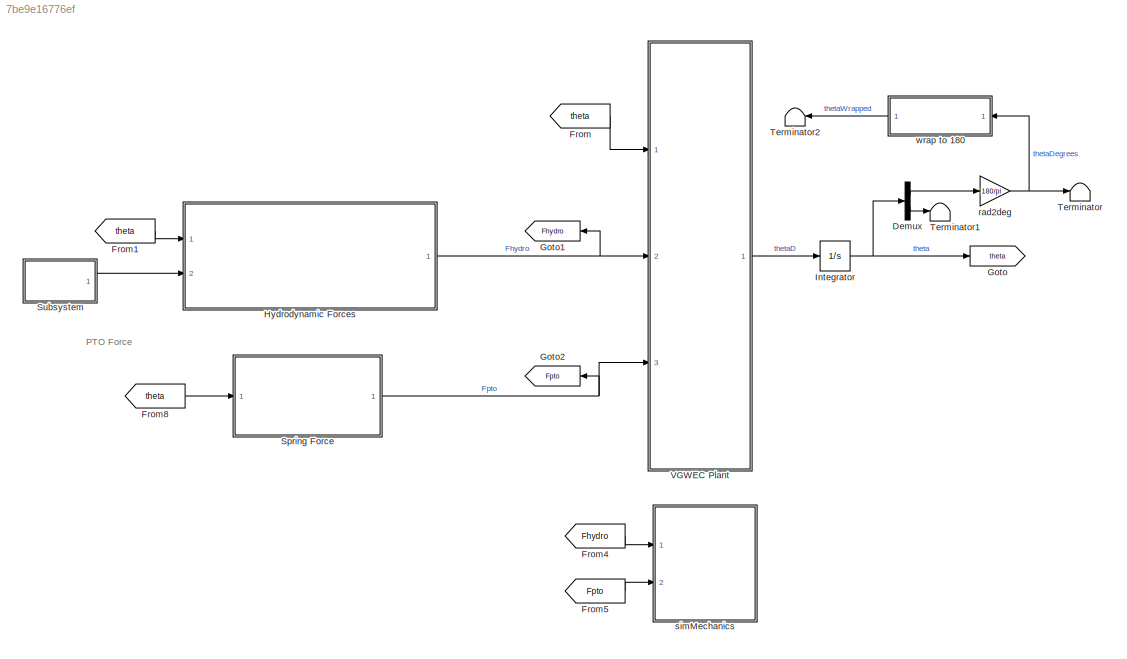
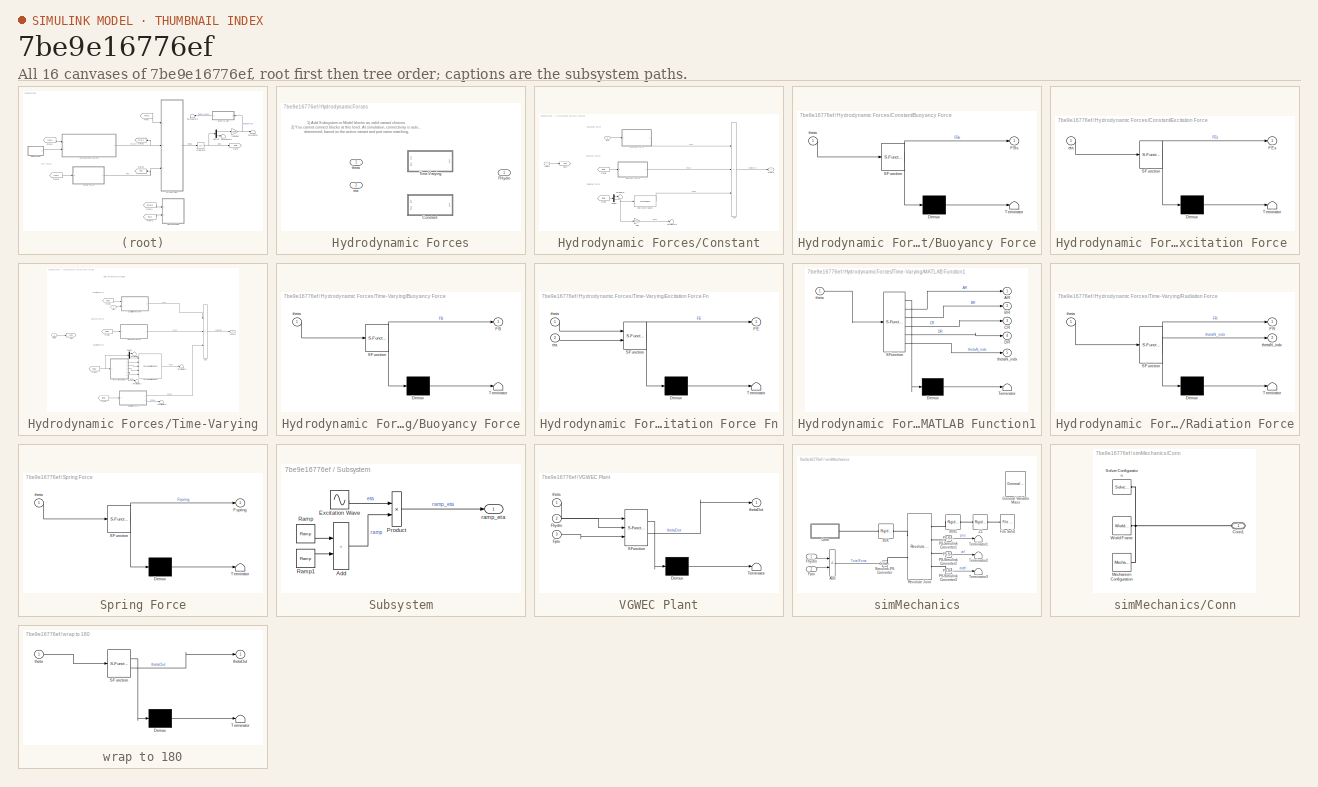
[diagram: thumbnail index - all 16 canvases of the model, root first then tree order]
MODEL slx_7be9e16776ef
KIND model
CONFIG AbsTol = auto
CONFIG EnableMultiTasking = off
CONFIG FixedStep = dt
CONFIG MaxStep = auto
CONFIG MinStep = auto
CONFIG RelTol = 1e-3
CONFIG SampleTimeConstraint = Unconstrained
CONFIG SolverName = ode3
CONFIG StartTime = 0.0
CONFIG StopTime = tSim
BLOCK [Demux] Demux
  Outputs = 2
  Ports = [1, 2]
BLOCK [From] From
  GotoTag = theta
BLOCK [From] From1
  GotoTag = theta
BLOCK [From] From4
  GotoTag = Fhydro
BLOCK [From] From5
  GotoTag = Fpto
BLOCK [From] From8
  GotoTag = theta
BLOCK [Goto] Goto
  GotoTag = theta
BLOCK [Goto] Goto1
  GotoTag = Fhydro
  NameLocation = top
BLOCK [Goto] Goto2
  GotoTag = Fpto
  NameLocation = top
BLOCK [SubSystem] Hydrodynamic Forces
  Ports = [2, 1]
  RequestExecContextInheritance = off
  Variant = on
BLOCK [SubSystem] Hydrodynamic Forces/Constant
  Ports = [2, 1]
  RequestExecContextInheritance = off
  VariantControl = Time_Variant == 0
BLOCK [Sum] Hydrodynamic Forces/Constant/Add
  IconShape = rectangular
  Inputs = +--
  Ports = [3, 1]
BLOCK [SubSystem] Hydrodynamic Forces/Constant/Buoyancy Force
  ErrorFcn = Stateflow.Translate.translate
  PermitHierarchicalResolution = ExplicitOnly
  Ports = [1, 1]
  RequestExecContextInheritance = off
  SFBlockType = MATLAB Function
  TreatAsAtomicUnit = on
BLOCK [Demux] Hydrodynamic Forces/Constant/Buoyancy Force/ Demux 
  Outputs = 1
  Ports = [1, 1]
BLOCK [S-Function] Hydrodynamic Forces/Constant/Buoyancy Force/ SFunction 
  EnableBusSupport = on
  FunctionName = sf_sfun
  Parameters = hydroCoeff,hydroVCoeff
  PortCounts = [1 2]
  Ports = [1, 2]
  SFcnIsStateOwnerBlock = off
  SFunctionDeploymentMode = off
  Tag = Stateflow S-Function 11
BLOCK [Terminator] Hydrodynamic Forces/Constant/Buoyancy Force/ Terminator 
BLOCK [Outport] Hydrodynamic Forces/Constant/Buoyancy Force/FBs
BLOCK [Inport] Hydrodynamic Forces/Constant/Buoyancy Force/theta
BLOCK [Demux] Hydrodynamic Forces/Constant/Demux
  Outputs = 2
  Ports = [1, 2]
BLOCK [SubSystem] Hydrodynamic Forces/Constant/Excitation Force 
  ErrorFcn = Stateflow.Translate.translate
  PermitHierarchicalResolution = ExplicitOnly
  Ports = [1, 1]
  RequestExecContextInheritance = off
  SFBlockType = MATLAB Function
  TreatAsAtomicUnit = on
BLOCK [Demux] Hydrodynamic Forces/Constant/Excitation Force / Demux 
  Outputs = 1
  Ports = [1, 1]
BLOCK [S-Function] Hydrodynamic Forces/Constant/Excitation Force / SFunction 
  EnableBusSupport = on
  FunctionName = sf_sfun
  Parameters = hydroCoeff,hydroVCoeff,w_Wave
  PortCounts = [1 2]
  Ports = [1, 2]
  SFcnIsStateOwnerBlock = off
  SFunctionDeploymentMode = off
  Tag = Stateflow S-Function 17
BLOCK [Terminator] Hydrodynamic Forces/Constant/Excitation Force / Terminator 
BLOCK [Outport] Hydrodynamic Forces/Constant/Excitation Force /FEs
BLOCK [Inport] Hydrodynamic Forces/Constant/Excitation Force /eta
BLOCK [Outport] Hydrodynamic Forces/Constant/FHydro
BLOCK [From] Hydrodynamic Forces/Constant/From1
  GotoTag = theta
BLOCK [From] Hydrodynamic Forces/Constant/From6
  GotoTag = theta
BLOCK [Gain] Hydrodynamic Forces/Constant/Gain
  Gain = test_B
BLOCK [Goto] Hydrodynamic Forces/Constant/Goto
  GotoTag = theta
BLOCK [StateSpace] Hydrodynamic Forces/Constant/Rad State-Space
  A = AR3
  B = BR3
  C = CR3
  D = DR3
  InitialCondition = 0
  Ports = [1, 1]
BLOCK [Terminator] Hydrodynamic Forces/Constant/Terminator
BLOCK [Terminator] Hydrodynamic Forces/Constant/Terminator1
BLOCK [Inport] Hydrodynamic Forces/Constant/eta
  Port = 2
BLOCK [Inport] Hydrodynamic Forces/Constant/theta
BLOCK [Outport] Hydrodynamic Forces/FHydro
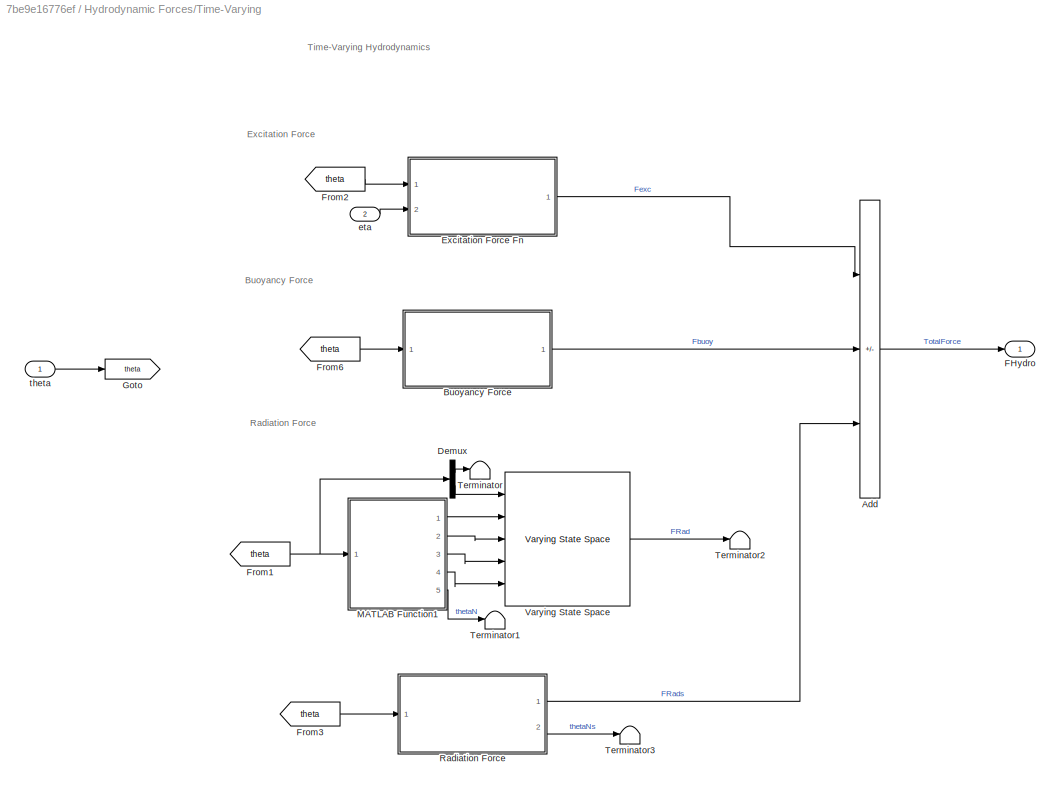
BLOCK [SubSystem] Hydrodynamic Forces/Time-Varying
  Ports = [2, 1]
  RequestExecContextInheritance = off
  VariantControl = Time_Variant == 1
BLOCK [Sum] Hydrodynamic Forces/Time-Varying/Add
  IconShape = rectangular
  Inputs = +--
  Ports = [3, 1]
BLOCK [SubSystem] Hydrodynamic Forces/Time-Varying/Buoyancy Force
  ErrorFcn = Stateflow.Translate.translate
  PermitHierarchicalResolution = ExplicitOnly
  Ports = [1, 1]
  RequestExecContextInheritance = off
  SFBlockType = MATLAB Function
  TreatAsAtomicUnit = on
BLOCK [Demux] Hydrodynamic Forces/Time-Varying/Buoyancy Force/ Demux 
  Outputs = 1
  Ports = [1, 1]
BLOCK [S-Function] Hydrodynamic Forces/Time-Varying/Buoyancy Force/ SFunction 
  EnableBusSupport = on
  FunctionName = sf_sfun
  Parameters = hydroCoeff,hydroVCoeff
  PortCounts = [1 2]
  Ports = [1, 2]
  SFcnIsStateOwnerBlock = off
  SFunctionDeploymentMode = off
  Tag = Stateflow S-Function 8
BLOCK [Terminator] Hydrodynamic Forces/Time-Varying/Buoyancy Force/ Terminator 
BLOCK [Outport] Hydrodynamic Forces/Time-Varying/Buoyancy Force/FB
BLOCK [Inport] Hydrodynamic Forces/Time-Varying/Buoyancy Force/theta
BLOCK [Demux] Hydrodynamic Forces/Time-Varying/Demux
  Outputs = 2
  Ports = [1, 2]
BLOCK [SubSystem] Hydrodynamic Forces/Time-Varying/Excitation Force Fn
  ErrorFcn = Stateflow.Translate.translate
  PermitHierarchicalResolution = ExplicitOnly
  Ports = [2, 1]
  RequestExecContextInheritance = off
  SFBlockType = MATLAB Function
  TreatAsAtomicUnit = on
BLOCK [Demux] Hydrodynamic Forces/Time-Varying/Excitation Force Fn/ Demux 
  Outputs = 1
  Ports = [1, 1]
BLOCK [S-Function] Hydrodynamic Forces/Time-Varying/Excitation Force Fn/ SFunction 
  EnableBusSupport = on
  FunctionName = sf_sfun
  Parameters = hydroCoeff,hydroVCoeff,w_Wave
  PortCounts = [2 2]
  Ports = [2, 2]
  SFcnIsStateOwnerBlock = off
  SFunctionDeploymentMode = off
  Tag = Stateflow S-Function 9
BLOCK [Terminator] Hydrodynamic Forces/Time-Varying/Excitation Force Fn/ Terminator 
BLOCK [Outport] Hydrodynamic Forces/Time-Varying/Excitation Force Fn/FE
BLOCK [Inport] Hydrodynamic Forces/Time-Varying/Excitation Force Fn/eta
  Port = 2
BLOCK [Inport] Hydrodynamic Forces/Time-Varying/Excitation Force Fn/theta
BLOCK [Outport] Hydrodynamic Forces/Time-Varying/FHydro
BLOCK [From] Hydrodynamic Forces/Time-Varying/From1
  GotoTag = theta
BLOCK [From] Hydrodynamic Forces/Time-Varying/From2
  GotoTag = theta
BLOCK [From] Hydrodynamic Forces/Time-Varying/From3
  GotoTag = theta
BLOCK [From] Hydrodynamic Forces/Time-Varying/From6
  GotoTag = theta
BLOCK [Goto] Hydrodynamic Forces/Time-Varying/Goto
  GotoTag = theta
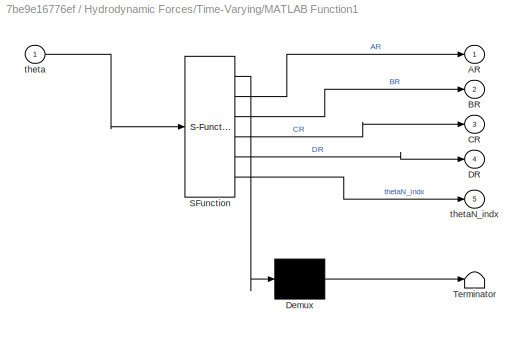
BLOCK [SubSystem] Hydrodynamic Forces/Time-Varying/MATLAB Function1
  ErrorFcn = Stateflow.Translate.translate
  PermitHierarchicalResolution = ExplicitOnly
  Ports = [1, 5]
  RequestExecContextInheritance = off
  SFBlockType = MATLAB Function
  TreatAsAtomicUnit = on
BLOCK [Demux] Hydrodynamic Forces/Time-Varying/MATLAB Function1/ Demux 
  Outputs = 1
  Ports = [1, 1]
BLOCK [S-Function] Hydrodynamic Forces/Time-Varying/MATLAB Function1/ SFunction 
  EnableBusSupport = on
  FunctionName = sf_sfun
  Parameters = hydroCoeff,tfRadAR_ROm,tfRadBR_ROm,tfRadCR_ROm,tfRadDR_ROm
  PortCounts = [1 6]
  Ports = [1, 6]
  SFcnIsStateOwnerBlock = off
  SFunctionDeploymentMode = off
  Tag = Stateflow S-Function 12
BLOCK [Terminator] Hydrodynamic Forces/Time-Varying/MATLAB Function1/ Terminator 
BLOCK [Outport] Hydrodynamic Forces/Time-Varying/MATLAB Function1/AR
BLOCK [Outport] Hydrodynamic Forces/Time-Varying/MATLAB Function1/BR
  Port = 2
BLOCK [Outport] Hydrodynamic Forces/Time-Varying/MATLAB Function1/CR
  Port = 3
BLOCK [Outport] Hydrodynamic Forces/Time-Varying/MATLAB Function1/DR
  Port = 4
BLOCK [Inport] Hydrodynamic Forces/Time-Varying/MATLAB Function1/theta
BLOCK [Outport] Hydrodynamic Forces/Time-Varying/MATLAB Function1/thetaN_indx
  Port = 5
BLOCK [SubSystem] Hydrodynamic Forces/Time-Varying/Radiation Force
  ErrorFcn = Stateflow.Translate.translate
  PermitHierarchicalResolution = ExplicitOnly
  Ports = [1, 2]
  RequestExecContextInheritance = off
  SFBlockType = MATLAB Function
  TreatAsAtomicUnit = on
BLOCK [Demux] Hydrodynamic Forces/Time-Varying/Radiation Force/ Demux 
  Outputs = 1
  Ports = [1, 1]
BLOCK [S-Function] Hydrodynamic Forces/Time-Varying/Radiation Force/ SFunction 
  EnableBusSupport = on
  FunctionName = sf_sfun
  Parameters = hydroCoeff,hydroVCoeff,w_WaveIndx
  PortCounts = [1 3]
  Ports = [1, 3]
  SFcnIsStateOwnerBlock = off
  SFunctionDeploymentMode = off
  Tag = Stateflow S-Function 3
BLOCK [Terminator] Hydrodynamic Forces/Time-Varying/Radiation Force/ Terminator 
BLOCK [Outport] Hydrodynamic Forces/Time-Varying/Radiation Force/FR
BLOCK [Inport] Hydrodynamic Forces/Time-Varying/Radiation Force/theta
BLOCK [Outport] Hydrodynamic Forces/Time-Varying/Radiation Force/thetaN_indx
  Port = 2
BLOCK [Terminator] Hydrodynamic Forces/Time-Varying/Terminator
BLOCK [Terminator] Hydrodynamic Forces/Time-Varying/Terminator1
BLOCK [Terminator] Hydrodynamic Forces/Time-Varying/Terminator2
BLOCK [Terminator] Hydrodynamic Forces/Time-Varying/Terminator3
BLOCK [Reference] Hydrodynamic Forces/Time-Varying/Varying State Space  REF=cstblocks/Linear Parameter Varying/Varying State Space
  Ports = [5, 1]
  SourceBlock = cstblocks/Linear Parameter Varying/Varying State Space
  SourceProductBaseCode = CT
  SourceType = Varying State Space
BLOCK [Inport] Hydrodynamic Forces/Time-Varying/eta
  Port = 2
BLOCK [Inport] Hydrodynamic Forces/Time-Varying/theta
BLOCK [Inport] Hydrodynamic Forces/eta
  Port = 2
BLOCK [Inport] Hydrodynamic Forces/theta
BLOCK [Integrator] Integrator
  InitialCondition = theta0
  Ports = [1, 1]
BLOCK [SubSystem] Spring Force
  ErrorFcn = Stateflow.Translate.translate
  PermitHierarchicalResolution = ExplicitOnly
  Ports = [1, 1]
  RequestExecContextInheritance = off
  SFBlockType = MATLAB Function
  TreatAsAtomicUnit = on
BLOCK [Demux] Spring Force/ Demux 
  Outputs = 1
  Ports = [1, 1]
BLOCK [S-Function] Spring Force/ SFunction 
  EnableBusSupport = on
  FunctionName = sf_sfun
  Parameters = hydroCoeff
  PortCounts = [1 2]
  Ports = [1, 2]
  SFcnIsStateOwnerBlock = off
  SFunctionDeploymentMode = off
  Tag = Stateflow S-Function 15
BLOCK [Terminator] Spring Force/ Terminator 
BLOCK [Outport] Spring Force/Fspring
BLOCK [Inport] Spring Force/theta
BLOCK [SubSystem] Subsystem
  Ports = [0, 1]
  RequestExecContextInheritance = off
BLOCK [Sum] Subsystem/Add
  IconShape = rectangular
  Ports = [2, 1]
BLOCK [Sin] Subsystem/Excitation Wave
  Amplitude = amp_Wave
  Frequency = w_Wave
  Ports = [0, 1]
  SampleTime = 0
BLOCK [Product] Subsystem/Product
  Ports = [2, 1]
BLOCK [Reference] Subsystem/Ramp  REF=simulink/Sources/Ramp
  Ports = [0, 1]
  SourceBlock = simulink/Sources/Ramp
  SourceProductBaseCode = SL
  SourceType = Ramp
BLOCK [Reference] Subsystem/Ramp1  REF=simulink/Sources/Ramp
  Ports = [0, 1]
  SourceBlock = simulink/Sources/Ramp
  SourceProductBaseCode = SL
  SourceType = Ramp
BLOCK [Outport] Subsystem/ramp_eta
BLOCK [Terminator] Terminator
BLOCK [Terminator] Terminator1
BLOCK [Terminator] Terminator2
  Commented = on
  NameLocation = top
BLOCK [SubSystem] VGWEC Plant
  ErrorFcn = Stateflow.Translate.translate
  PermitHierarchicalResolution = ExplicitOnly
  Ports = [3, 1]
  RequestExecContextInheritance = off
  SFBlockType = MATLAB Function
  TreatAsAtomicUnit = on
BLOCK [Demux] VGWEC Plant/ Demux 
  Outputs = 1
  Ports = [1, 1]
BLOCK [S-Function] VGWEC Plant/ SFunction 
  EnableBusSupport = on
  FunctionName = sf_sfun
  Parameters = Time_Variant,hydroCoeff,hydroVCoeff
  PortCounts = [3 2]
  Ports = [3, 2]
  SFcnIsStateOwnerBlock = off
  SFunctionDeploymentMode = off
  Tag = Stateflow S-Function 2
BLOCK [Terminator] VGWEC Plant/ Terminator 
BLOCK [Inport] VGWEC Plant/Fhydro
  Port = 2
BLOCK [Inport] VGWEC Plant/Fpto
  Port = 3
BLOCK [Inport] VGWEC Plant/theta
BLOCK [Outport] VGWEC Plant/thetaDot
BLOCK [Gain] rad2deg
  Gain = 180/pi
BLOCK [SubSystem] simMechanics
  Ports = [2]
  RequestExecContextInheritance = off
BLOCK [Reference] simMechanics/-Z1  REF=sm_lib/Frames and
Transforms/Rigid
Transform
  Ports = [0, 0, 0, 0, 0, 1, 1]
  SourceBlock = sm_lib/Frames and\nTransforms/Rigid\nTransform
  SourceProductBaseCode = MS
  SourceType = Rigid\nTransform
BLOCK [Reference] simMechanics/90X  REF=sm_lib/Frames and
Transforms/Rigid
Transform
  Ports = [0, 0, 0, 0, 0, 1, 1]
  SourceBlock = sm_lib/Frames and\nTransforms/Rigid\nTransform
  SourceProductBaseCode = MS
  SourceType = Rigid\nTransform
BLOCK [Reference] simMechanics/90X1  REF=sm_lib/Frames and
Transforms/Rigid
Transform
  Ports = [0, 0, 0, 0, 0, 1, 1]
  SourceBlock = sm_lib/Frames and\nTransforms/Rigid\nTransform
  SourceProductBaseCode = MS
  SourceType = Rigid\nTransform
BLOCK [Sum] simMechanics/Add
  IconShape = rectangular
  Inputs = +-
  Ports = [2, 1]
BLOCK [SubSystem] simMechanics/Conn
  Ports = [0, 0, 0, 0, 0, 0, 1]
  RequestExecContextInheritance = off
BLOCK [PMIOPort] simMechanics/Conn/Conn1
  Side = Right
BLOCK [Reference] simMechanics/Conn/Mechanism Configuration  REF=sm_lib/Utilities/Mechanism
Configuration
  Ports = [0, 0, 0, 0, 0, 0, 1]
  SourceBlock = sm_lib/Utilities/Mechanism\nConfiguration
  SourceProductBaseCode = MS
  SourceType = Mechanism\nConfiguration
BLOCK [Reference] simMechanics/Conn/Solver Configuration  REF=nesl_utility/Solver
Configuration
  Ports = [0, 0, 0, 0, 0, 0, 1]
  SourceBlock = nesl_utility/Solver\nConfiguration
  SourceProductBaseCode = SS,PW,VE
  SourceType = Solver\nConfiguration
BLOCK [Reference] simMechanics/Conn/World Frame  REF=sm_lib/Frames and
Transforms/World Frame
  Ports = [0, 0, 0, 0, 0, 0, 1]
  SourceBlock = sm_lib/Frames and\nTransforms/World Frame
  SourceProductBaseCode = MS
  SourceType = World Frame
BLOCK [Inport] simMechanics/Fhydro
BLOCK [Reference] simMechanics/File Solid  REF=sm_lib/Body Elements/File Solid
  NameLocation = top
  Ports = [0, 0, 0, 0, 0, 0, 1]
  SourceBlock = sm_lib/Body Elements/File Solid
  SourceProductBaseCode = MS
  SourceType = File Solid
BLOCK [Inport] simMechanics/Fpto
  Port = 2
BLOCK [Reference] simMechanics/General Variable Mass  REF=sm_lib/Body Elements/Variable Mass/General
Variable Mass
  Commented = on
  Ports = [0, 0, 0, 0, 0, 1, 1]
  SourceBlock = sm_lib/Body Elements/Variable Mass/General\nVariable Mass
  SourceProductBaseCode = MS
  SourceType = General\nVariable Mass
BLOCK [Reference] simMechanics/PS-Simulink Converter1  REF=nesl_utility/PS-Simulink
Converter
  Ports = [0, 1, 0, 0, 0, 1]
  SourceBlock = nesl_utility/PS-Simulink\nConverter
  SourceProductBaseCode = SS,PW,VE
  SourceType = PS-Simulink\nConverter
BLOCK [Reference] simMechanics/PS-Simulink Converter2  REF=nesl_utility/PS-Simulink
Converter
  Ports = [0, 1, 0, 0, 0, 1]
  SourceBlock = nesl_utility/PS-Simulink\nConverter
  SourceProductBaseCode = SS,PW,VE
  SourceType = PS-Simulink\nConverter
BLOCK [Reference] simMechanics/PS-Simulink Converter3  REF=nesl_utility/PS-Simulink
Converter
  Ports = [0, 1, 0, 0, 0, 1]
  SourceBlock = nesl_utility/PS-Simulink\nConverter
  SourceProductBaseCode = SS,PW,VE
  SourceType = PS-Simulink\nConverter
BLOCK [Reference] simMechanics/Revolute Joint  REF=sm_lib/Joints/Revolute Joint
  Ports = [0, 0, 0, 0, 0, 2, 4]
  SourceBlock = sm_lib/Joints/Revolute Joint
  SourceProductBaseCode = MS
  SourceType = Revolute Joint
BLOCK [Reference] simMechanics/Simulink-PS Converter  REF=nesl_utility/Simulink-PS
Converter
  Ports = [1, 0, 0, 0, 0, 0, 1]
  SourceBlock = nesl_utility/Simulink-PS\nConverter
  SourceProductBaseCode = SS,PW,VE
  SourceType = Simulink-PS\nConverter
BLOCK [Terminator] simMechanics/Terminator1
BLOCK [Terminator] simMechanics/Terminator2
BLOCK [Terminator] simMechanics/Terminator3
BLOCK [SubSystem] wrap to 180
  Commented = on
  ErrorFcn = Stateflow.Translate.translate
  NameLocation = top
  PermitHierarchicalResolution = ExplicitOnly
  Ports = [1, 1]
  RequestExecContextInheritance = off
  SFBlockType = MATLAB Function
  TreatAsAtomicUnit = on
BLOCK [Demux] wrap to 180/ Demux 
  Outputs = 1
  Ports = [1, 1]
BLOCK [S-Function] wrap to 180/ SFunction 
  EnableBusSupport = on
  FunctionName = sf_sfun
  PortCounts = [1 2]
  Ports = [1, 2]
  SFcnIsStateOwnerBlock = off
  SFunctionDeploymentMode = off
  Tag = Stateflow S-Function 1
BLOCK [Terminator] wrap to 180/ Terminator 
BLOCK [Inport] wrap to 180/theta
BLOCK [Outport] wrap to 180/thetaOut
ANNOTATION (root): PTO Force
ANNOTATION Hydrodynamic Forces: 1) Add Subsystem or Model blocks as valid variant choices. 2) You cannot connect blocks at this level. At simulation, connectivity is automatically determined, based on the active variant and port name matching.
ANNOTATION Hydrodynamic Forces/Constant: Buoyancy Force
ANNOTATION Hydrodynamic Forces/Constant: Excitation Force
ANNOTATION Hydrodynamic Forces/Constant: Radiation Force
ANNOTATION Hydrodynamic Forces/Time-Varying: Time-Varying Hydrodynamics
ANNOTATION Hydrodynamic Forces/Time-Varying: Buoyancy Force
ANNOTATION Hydrodynamic Forces/Time-Varying: Excitation Force
ANNOTATION Hydrodynamic Forces/Time-Varying: Radiation Force
LINE Demux:1 -> rad2deg:1
LINE Demux:2 -> Terminator1:1
LINE From1:1 -> Hydrodynamic Forces:1
LINE From4:1 -> simMechanics:1
LINE From5:1 -> simMechanics:2
LINE From8:1 -> Spring Force:1
LINE From:1 -> VGWEC Plant:1
LINE Hydrodynamic Forces/Constant/Add:1 -> Hydrodynamic Forces/Constant/FHydro:1
LINE Hydrodynamic Forces/Constant/Buoyancy Force:1 -> Hydrodynamic Forces/Constant/Add:2
LINE Hydrodynamic Forces/Constant/Demux:1 -> Hydrodynamic Forces/Constant/Terminator:1
NET Hydrodynamic Forces/Constant/Demux:2 -> Hydrodynamic Forces/Constant/Gain:1, Hydrodynamic Forces/Constant/Rad State-Space:1
LINE Hydrodynamic Forces/Constant/Excitation Force :1 -> Hydrodynamic Forces/Constant/Add:1
LINE Hydrodynamic Forces/Constant/From1:1 -> Hydrodynamic Forces/Constant/Demux:1
LINE Hydrodynamic Forces/Constant/From6:1 -> Hydrodynamic Forces/Constant/Buoyancy Force:1
LINE Hydrodynamic Forces/Constant/Gain:1 -> Hydrodynamic Forces/Constant/Terminator1:1
LINE Hydrodynamic Forces/Constant/Rad State-Space:1 -> Hydrodynamic Forces/Constant/Add:3
LINE Hydrodynamic Forces/Constant/eta:1 -> Hydrodynamic Forces/Constant/Excitation Force :1
LINE Hydrodynamic Forces/Constant/theta:1 -> Hydrodynamic Forces/Constant/Goto:1
LINE Hydrodynamic Forces/Time-Varying/Add:1 -> Hydrodynamic Forces/Time-Varying/FHydro:1
LINE Hydrodynamic Forces/Time-Varying/Buoyancy Force:1 -> Hydrodynamic Forces/Time-Varying/Add:2
LINE Hydrodynamic Forces/Time-Varying/Demux:1 -> Hydrodynamic Forces/Time-Varying/Terminator:1
LINE Hydrodynamic Forces/Time-Varying/Demux:2 -> Hydrodynamic Forces/Time-Varying/Varying State Space:1
LINE Hydrodynamic Forces/Time-Varying/Excitation Force Fn:1 -> Hydrodynamic Forces/Time-Varying/Add:1
NET Hydrodynamic Forces/Time-Varying/From1:1 -> Hydrodynamic Forces/Time-Varying/Demux:1, Hydrodynamic Forces/Time-Varying/MATLAB Function1:1
LINE Hydrodynamic Forces/Time-Varying/From2:1 -> Hydrodynamic Forces/Time-Varying/Excitation Force Fn:1
LINE Hydrodynamic Forces/Time-Varying/From3:1 -> Hydrodynamic Forces/Time-Varying/Radiation Force:1
LINE Hydrodynamic Forces/Time-Varying/From6:1 -> Hydrodynamic Forces/Time-Varying/Buoyancy Force:1
LINE Hydrodynamic Forces/Time-Varying/MATLAB Function1:1 -> Hydrodynamic Forces/Time-Varying/Varying State Space:2
LINE Hydrodynamic Forces/Time-Varying/MATLAB Function1:2 -> Hydrodynamic Forces/Time-Varying/Varying State Space:3
LINE Hydrodynamic Forces/Time-Varying/MATLAB Function1:3 -> Hydrodynamic Forces/Time-Varying/Varying State Space:4
LINE Hydrodynamic Forces/Time-Varying/MATLAB Function1:4 -> Hydrodynamic Forces/Time-Varying/Varying State Space:5
LINE Hydrodynamic Forces/Time-Varying/MATLAB Function1:5 -> Hydrodynamic Forces/Time-Varying/Terminator1:1
LINE Hydrodynamic Forces/Time-Varying/Radiation Force:1 -> Hydrodynamic Forces/Time-Varying/Add:3
LINE Hydrodynamic Forces/Time-Varying/Radiation Force:2 -> Hydrodynamic Forces/Time-Varying/Terminator3:1
LINE Hydrodynamic Forces/Time-Varying/Varying State Space:1 -> Hydrodynamic Forces/Time-Varying/Terminator2:1
LINE Hydrodynamic Forces/Time-Varying/eta:1 -> Hydrodynamic Forces/Time-Varying/Excitation Force Fn:2
LINE Hydrodynamic Forces/Time-Varying/theta:1 -> Hydrodynamic Forces/Time-Varying/Goto:1
NET Hydrodynamic Forces:1 -> Goto1:1, VGWEC Plant:2
NET Integrator:1 -> Demux:1, Goto:1
NET Spring Force:1 -> Goto2:1, VGWEC Plant:3
LINE Subsystem/Add:1 -> Subsystem/Product:2
LINE Subsystem/Excitation Wave:1 -> Subsystem/Product:1
LINE Subsystem/Product:1 -> Subsystem/ramp_eta:1
LINE Subsystem/Ramp1:1 -> Subsystem/Add:2
LINE Subsystem/Ramp:1 -> Subsystem/Add:1
LINE Subsystem:1 -> Hydrodynamic Forces:2
LINE VGWEC Plant:1 -> Integrator:1
NET rad2deg:1 -> Terminator:1, wrap to 180:1
LINE simMechanics/Add:1 -> simMechanics/Simulink-PS Converter:1
LINE simMechanics/Fhydro:1 -> simMechanics/Add:1
LINE simMechanics/Fpto:1 -> simMechanics/Add:2
LINE simMechanics/PS-Simulink Converter1:1 -> simMechanics/Terminator1:1
LINE simMechanics/PS-Simulink Converter2:1 -> simMechanics/Terminator2:1
LINE simMechanics/PS-Simulink Converter3:1 -> simMechanics/Terminator3:1
LINE wrap to 180:1 -> Terminator2:1
PLINE simMechanics/-Z1:LConn1 -- simMechanics/90X1:RConn1
PLINE simMechanics/-Z1:RConn1 -- simMechanics/File Solid:RConn1
PLINE simMechanics/90X1:LConn1 -- simMechanics/Revolute Joint:RConn1
PLINE simMechanics/90X:LConn1 -- simMechanics/Conn:RConn1
PLINE simMechanics/90X:RConn1 -- simMechanics/Revolute Joint:LConn1
PNET net1: simMechanics/Conn/Conn1:RConn1 -- simMechanics/Conn/Mechanism Configuration:RConn1 -- simMechanics/Conn/Solver Configuration:RConn1 -- simMechanics/Conn/World Frame:RConn1
PLINE simMechanics/PS-Simulink Converter1:LConn1 -- simMechanics/Revolute Joint:RConn2
PLINE simMechanics/PS-Simulink Converter2:LConn1 -- simMechanics/Revolute Joint:RConn3
PLINE simMechanics/PS-Simulink Converter3:LConn1 -- simMechanics/Revolute Joint:RConn4
PLINE simMechanics/Revolute Joint:LConn2 -- simMechanics/Simulink-PS Converter:RConn1
note: NET lines group one-source signal fan-out (src -> all destinations, sorted); 1:1 wires keep LINE; PNET lines group multi-terminal physical nets as a canonical sorted terminal list (undirected conserving connections); 2-terminal nets keep the pairwise PLINE form
CHART Hydrodynamic Forces/Constant/Excitation Force  states=1 transitions=1
  STATE_LABEL 'eML_blk_kernel()'
  STATE_LABEL 'SCRIPT:\nfunction  FEs = fE(eta,hydroCoeff, hydroVCoeff, w_Wave)\n\n\n%% Calculate the Excitation Force for a Constant theta\nw  = find(hydroCoeff.w > w_Wave,1)-1;\nKE = hydroVCoeff.KE(w, hydroCoeff.singleThetaIndex); % Excitation Force Kernel\n\nFEs = 0; \nFEs(1) = eta*KE; '
CHART wrap to 180 states=1 transitions=1
  STATE_LABEL 'eML_blk_kernel()'
  STATE_LABEL 'SCRIPT:\nfunction thetaOut = fcn(theta)\n\nthetaOut = 0; \nthetaOut(1) = wrapTo180(theta);\n\nthetaOut = theta; \n'
CHART VGWEC Plant states=1 transitions=1
  STATE_LABEL 'eML_blk_kernel()'
  STATE_LABEL "SCRIPT:\nfunction thetaDot = vgWEC(theta, Fhydro, hydroVCoeff, hydroCoeff, Fpto, Time_Variant)\n\n% Declare the plant as an extrinsic function\n%coder.extrinsic('vgWecPlant');\n\nthetaDot = vgWecPlant(theta, hydroCoeff, hydroVCoeff, Fhydro, Fpto, Time_Variant);\n\n%% Wrap the angle to be +- Pi \n\n% thetaDot = wrapToPi(thetaDot); \n"
CHART Hydrodynamic Forces/Time-Varying/Radiation Force states=1 transitions=1
  STATE_LABEL 'eML_blk_kernel()'
  STATE_LABEL 'SCRIPT:\nfunction [FR, thetaN_indx] = fRad(theta,hydroCoeff, hydroVCoeff,w_WaveIndx)\n\n% States: \ntheta1  = theta(1); % (1) theta:  pitch angle response\ntheta2  = theta(2); % (2) thetaD: pitch angle velocity\n\n% Find the index for the discretized theta \n\ntheta1N = wrapToPi(theta1); \n\nif abs(rad2deg(theta1N)) >= 95 \n    theta1N = pi - abs(theta1N);\nend \n\n\nthetaN = find(deg2rad(hydroCoeff.theta) > abs(...<+213ch>'
CHART Hydrodynamic Forces/Time-Varying/Buoyancy Force states=1 transitions=1
  STATE_LABEL 'eML_blk_kernel()'
  STATE_LABEL 'SCRIPT:\nfunction FB = fBuoy(theta,hydroCoeff, hydroVCoeff)\n\n% States: \ntheta1  = theta(1); % (1) theta:  pitch angle response\n% theta2  = theta(2); % (2) thetaD: pitch angle velocity\n\n% Find the index for the discretized theta \n\ntheta1N = wrapToPi(theta1); \n\nif abs(rad2deg(theta1N)) >= 95 \n    theta1N = pi - abs(theta1N);\nend \n\n\nthetaN = find(deg2rad(hydroCoeff.theta) > abs(theta1N),1); \n\nc  = hyd...<+141ch>'
CHART Hydrodynamic Forces/Time-Varying/Excitation Force Fn states=1 transitions=1
  STATE_LABEL 'eML_blk_kernel()'
  STATE_LABEL "SCRIPT:\nfunction FE= fE(theta,eta,hydroCoeff, hydroVCoeff, w_Wave)\n\n% % Declare the excitation force function as an extrinsic function\n% %coder.extrinsic('fExc');\n% \n% FE = fExc(theta, eta, w_Wave,hydroVCoeff,hydroCoeff);\n% \n% function FE = fExc(theta, eta, w_Wave,hydroVCoeff,hydroCoeff)\n% This function generates the linear excitation force\n\n% Inputs: \n% theta0      = current states condition\n% et...<+1047ch>"
CHART Hydrodynamic Forces/Constant/Buoyancy Force states=1 transitions=1
  STATE_LABEL 'eML_blk_kernel()'
  STATE_LABEL 'SCRIPT:\nfunction FBs = fBuoy(theta,hydroCoeff, hydroVCoeff)\n\n% States: \ntheta1  = theta(1); % (1) theta:  pitch angle response\n% theta2  = theta(2); % (2) thetaD: pitch angle velocity\n\n% Find the index for the discretized theta \n% if abs(rad2deg(theta1)) > 100\n%     theta1 = 180 - abs(rad2deg(theta1));\n%     theta1 = deg2rad(theta1);\n% end \n\n%% Constant Theta\ncs  = hydroVCoeff.c(hydroCoeff.singleT...<+85ch>'
CHART Hydrodynamic Forces/Time-Varying/MATLAB Function1 states=1 transitions=1
  STATE_LABEL 'eML_blk_kernel()'
  STATE_LABEL 'SCRIPT:\nfunction [AR, BR, CR, DR, thetaN_indx] = RadTFCoeffs(theta,hydroCoeff, tfRadAR_ROm, tfRadBR_ROm, tfRadCR_ROm, tfRadDR_ROm)\n% This function extracts the coefficients of the Radiation Transfer\n% Function based on previously fitted data between discretized thetas. \n\n% Inputs: \n% theta0      = current states condition\n% hydrovCoeff = time-variable hydrodynamic coefficients\n% thetaN      = pitc...<+814ch>'
CHART Spring Force states=1 transitions=1
  STATE_LABEL 'eML_blk_kernel()'
  STATE_LABEL 'SCRIPT:\nfunction Fspring = fPTO(theta,hydroCoeff)\n\n% This function represents the plant of a variable geometry wave energy\n% converter. The model here is derived by Mcabe 2006. \n\n% Inputs: \n% theta      = initial state conditions\n% hydroCoeff  = time-invariable hydrodynamic coefficients\n\n% Outputs: \n% Fspring   = PTO spring force\n\n% States: \ntheta1  = theta(1); % (1) theta:  pitch angle response\n%...<+182ch>'
CHART  states=0 transitions=0
CHART  states=0 transitions=0
CHART  states=0 transitions=0
CHART  states=0 transitions=0
CHART  states=0 transitions=0
CHART  states=0 transitions=0
CHART  states=0 transitions=0
CHART  states=0 transitions=0
CHART  states=0 transitions=0
